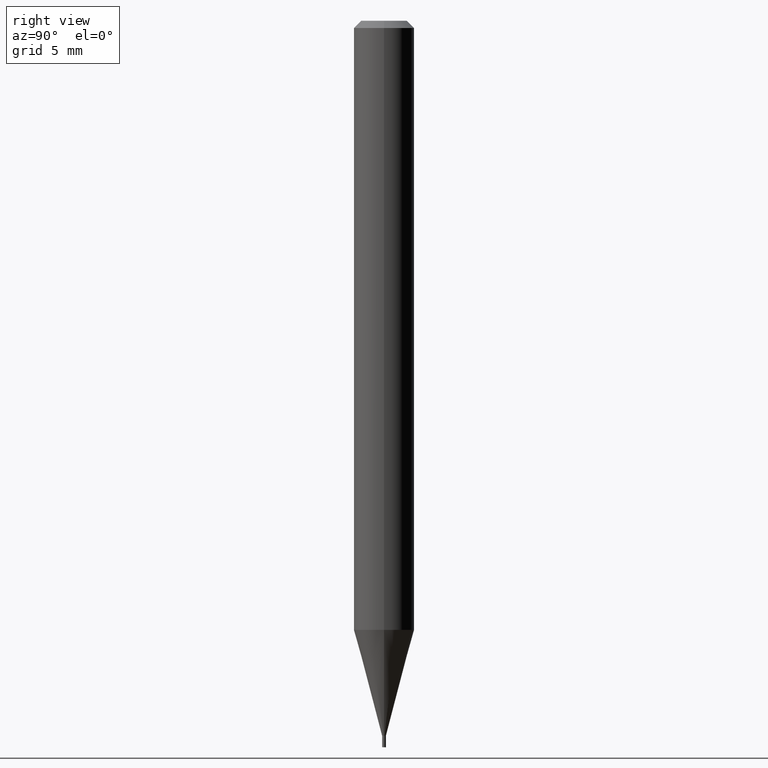
[diagram: clean part render]
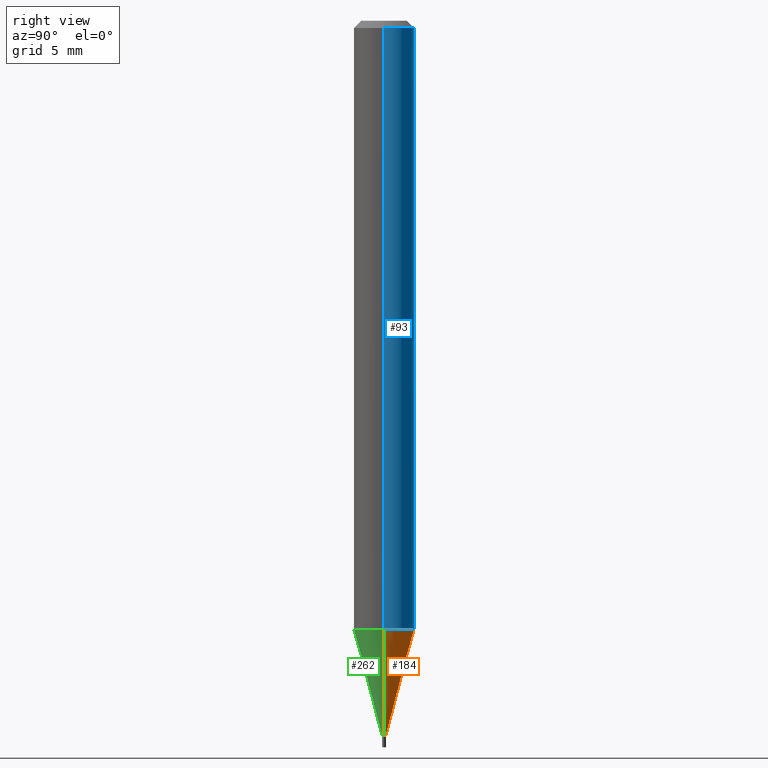
[diagram: same view with three faces highlighted in distinct colors, each labeled with its STEP entity id]
A machine part, right view with three faces highlighted in distinct colors.
Their STEP definitions:

[orange] entity #184 — the highlighted conical surface has half-angle 15 deg.
#2 = VERTEX_POINT ( 'NONE', #280 ) ;
#21 = VECTOR ( 'NONE', #464, 39.37007874015748854 ) ;
#27 = DIRECTION ( 'NONE',  ( 1.000000000000000000, -6.982962677686217801E-15, 0.000000000000000000 ) ) ;
#35 = AXIS2_PLACEMENT_3D ( 'NONE', #385, #243, #257 ) ;
#36 = CARTESIAN_POINT ( 'NONE',  ( 0.003999999999999648802, -5.181358306843225329E-15, -1.475999999999999979 ) ) ;
#41 = CARTESIAN_POINT ( 'NONE',  ( 0.003999999999999648802, -5.181358306843225329E-15, -1.475999999999999979 ) ) ;
#56 = EDGE_CURVE ( 'NONE', #208, #2, #68, .T. ) ;
#60 = CONICAL_SURFACE ( 'NONE', #121, 0.003999999999999648802, 0.2617993877991504625 ) ;
#68 = LINE ( 'NONE', #167, #179 ) ;
#71 = DIRECTION ( 'NONE',  ( 1.000000000000000000, -6.982962677686262766E-15, 0.000000000000000000 ) ) ;
#74 = DIRECTION ( 'NONE',  ( -0.2588190451025217387, 5.211531920934551042E-15, 0.9659258262890679791 ) ) ;
#78 = VERTEX_POINT ( 'NONE', #41 ) ;
#97 = LINE ( 'NONE', #36, #21 ) ;
#112 = EDGE_LOOP ( 'NONE', ( #457, #165, #447, #245 ) ) ;
#113 = EDGE_CURVE ( 'NONE', #78, #208, #125, .T. ) ;
#121 = AXIS2_PLACEMENT_3D ( 'NONE', #412, #344, #27 ) ;
#125 = CIRCLE ( 'NONE', #35, 0.003999999999999648802 ) ;
#165 = ORIENTED_EDGE ( 'NONE', *, *, #56, .T. ) ;
#167 = CARTESIAN_POINT ( 'NONE',  ( -0.003999999999999648802, -5.125004746702081184E-15, -1.475999999999999979 ) ) ;
#176 = CARTESIAN_POINT ( 'NONE',  ( -0.003999999999999648802, -4.536032213297693452E-15, -1.475999999999999979 ) ) ;
#178 = CARTESIAN_POINT ( 'NONE',  ( 0.06250000000000000000, -4.827584057098760794E-15, -1.257675027757220398 ) ) ;
#179 = VECTOR ( 'NONE', #74, 39.37007874015748854 ) ;
#184 = ADVANCED_FACE ( 'NONE', ( #307 ), #60, .T. ) ;
#188 = EDGE_CURVE ( 'NONE', #410, #2, #189, .T. ) ;
#189 = CIRCLE ( 'NONE', #411, 0.06250000000000000000 ) ;
#208 = VERTEX_POINT ( 'NONE', #176 ) ;
#242 = DIRECTION ( 'NONE',  ( -2.445468806185136597E-29, 3.491481338843145583E-15, 1.000000000000000000 ) ) ;
#243 = DIRECTION ( 'NONE',  ( -2.445468806185136597E-29, 3.491481338843145583E-15, 1.000000000000000000 ) ) ;
#245 = ORIENTED_EDGE ( 'NONE', *, *, #335, .F. ) ;
#257 = DIRECTION ( 'NONE',  ( 1.000000000000000000, -6.982962677686217801E-15, 0.000000000000000000 ) ) ;
#280 = CARTESIAN_POINT ( 'NONE',  ( -0.06250000000000000000, -3.947059679893307297E-15, -1.257675027757220398 ) ) ;
#283 = CARTESIAN_POINT ( 'NONE',  ( 3.075605048698308090E-29, -4.391148889743369914E-15, -1.257675027757220398 ) ) ;
#307 = FACE_OUTER_BOUND ( 'NONE', #112, .T. ) ;
#335 = EDGE_CURVE ( 'NONE', #78, #410, #97, .T. ) ;
#344 = DIRECTION ( 'NONE',  ( -2.445468806185136597E-29, 3.491481338843145583E-15, 1.000000000000000000 ) ) ;
#385 = CARTESIAN_POINT ( 'NONE',  ( 3.609511957929261635E-29, -5.153426456132482850E-15, -1.475999999999999979 ) ) ;
#410 = VERTEX_POINT ( 'NONE', #178 ) ;
#411 = AXIS2_PLACEMENT_3D ( 'NONE', #283, #242, #71 ) ;
#412 = CARTESIAN_POINT ( 'NONE',  ( 3.609511957929261635E-29, -5.153426456132482850E-15, -1.475999999999999979 ) ) ;
#447 = ORIENTED_EDGE ( 'NONE', *, *, #188, .F. ) ;
#457 = ORIENTED_EDGE ( 'NONE', *, *, #113, .T. ) ;
#464 = DIRECTION ( 'NONE',  ( 0.2588190451025217387, 1.565188264969619207E-15, 0.9659258262890679791 ) ) ;

[blue] entity #93 — the highlighted cylindrical surface (edge-blend (fillet) strip) has radius 1.5875 mm, axis along (-0, 0, 1).
#2 = VERTEX_POINT ( 'NONE', #280 ) ;
#20 = VECTOR ( 'NONE', #394, 39.37007874015748143 ) ;
#26 = VERTEX_POINT ( 'NONE', #209 ) ;
#71 = DIRECTION ( 'NONE',  ( 1.000000000000000000, -6.982962677686262766E-15, 0.000000000000000000 ) ) ;
#80 = CARTESIAN_POINT ( 'NONE',  ( -0.06250000000000000000, 4.440892098500626162E-16, -3.074334431409316114E-30 ) ) ;
#93 = ADVANCED_FACE ( 'NONE', ( #316 ), #256, .T. ) ;
#100 = ORIENTED_EDGE ( 'NONE', *, *, #162, .F. ) ;
#101 = CARTESIAN_POINT ( 'NONE',  ( 0.000000000000000000, 0.000000000000000000, 0.000000000000000000 ) ) ;
#119 = EDGE_CURVE ( 'NONE', #2, #26, #143, .T. ) ;
#127 = EDGE_LOOP ( 'NONE', ( #451, #322, #461, #100 ) ) ;
#143 = LINE ( 'NONE', #80, #20 ) ;
#149 = VECTOR ( 'NONE', #269, 39.37007874015748143 ) ;
#154 = LINE ( 'NONE', #191, #149 ) ;
#162 = EDGE_CURVE ( 'NONE', #410, #458, #154, .T. ) ;
#175 = DIRECTION ( 'NONE',  ( 1.000000000000000000, -6.982962677686266711E-15, 4.876176775795935793E-29 ) ) ;
#178 = CARTESIAN_POINT ( 'NONE',  ( 0.06250000000000000000, -4.827584057098760794E-15, -1.257675027757220398 ) ) ;
#185 = EDGE_CURVE ( 'NONE', #458, #26, #270, .T. ) ;
#188 = EDGE_CURVE ( 'NONE', #410, #2, #189, .T. ) ;
#189 = CIRCLE ( 'NONE', #411, 0.06250000000000000000 ) ;
#191 = CARTESIAN_POINT ( 'NONE',  ( 0.06250000000000000000, -4.364351673553916694E-16, 3.047610484872459871E-30 ) ) ;
#207 = DIRECTION ( 'NONE',  ( -2.445468806185136597E-29, 3.491481338843145583E-15, 1.000000000000000000 ) ) ;
#209 = CARTESIAN_POINT ( 'NONE',  ( -0.06250000000000000000, -1.777671345062946077E-15, -0.01499999999999999944 ) ) ;
#242 = DIRECTION ( 'NONE',  ( -2.445468806185136597E-29, 3.491481338843145583E-15, 1.000000000000000000 ) ) ;
#256 = CYLINDRICAL_SURFACE ( 'NONE', #404, 0.06250000000000000000 ) ;
#259 = CARTESIAN_POINT ( 'NONE',  ( 0.06250000000000000000, -4.888073874380388472E-16, -0.01499999999999999944 ) ) ;
#269 = DIRECTION ( 'NONE',  ( -2.445468806185136877E-29, 3.491481338843145188E-15, 1.000000000000000000 ) ) ;
#270 = CIRCLE ( 'NONE', #352, 0.06250000000000000000 ) ;
#272 = DIRECTION ( 'NONE',  ( 1.000000000000000000, -6.982962677686266711E-15, 0.000000000000000000 ) ) ;
#280 = CARTESIAN_POINT ( 'NONE',  ( -0.06250000000000000000, -3.947059679893307297E-15, -1.257675027757220398 ) ) ;
#283 = CARTESIAN_POINT ( 'NONE',  ( 3.075605048698308090E-29, -4.391148889743369914E-15, -1.257675027757220398 ) ) ;
#316 = FACE_OUTER_BOUND ( 'NONE', #127, .T. ) ;
#322 = ORIENTED_EDGE ( 'NONE', *, *, #119, .T. ) ;
#352 = AXIS2_PLACEMENT_3D ( 'NONE', #380, #207, #272 ) ;
#380 = CARTESIAN_POINT ( 'NONE',  ( 3.668203209277705088E-31, -5.237222008264718399E-17, -0.01499999999999999944 ) ) ;
#394 = DIRECTION ( 'NONE',  ( -2.445468806185136877E-29, 3.491481338843145188E-15, 1.000000000000000000 ) ) ;
#404 = AXIS2_PLACEMENT_3D ( 'NONE', #101, #466, #175 ) ;
#410 = VERTEX_POINT ( 'NONE', #178 ) ;
#411 = AXIS2_PLACEMENT_3D ( 'NONE', #283, #242, #71 ) ;
#451 = ORIENTED_EDGE ( 'NONE', *, *, #188, .T. ) ;
#458 = VERTEX_POINT ( 'NONE', #259 ) ;
#461 = ORIENTED_EDGE ( 'NONE', *, *, #185, .F. ) ;
#466 = DIRECTION ( 'NONE',  ( -2.445468806185136597E-29, 3.491481338843145583E-15, 1.000000000000000000 ) ) ;

[green] entity #262 — the highlighted conical surface has half-angle 15 deg.
#2 = VERTEX_POINT ( 'NONE', #280 ) ;
#10 = CARTESIAN_POINT ( 'NONE',  ( 3.609511957929261635E-29, -5.153426456132482850E-15, -1.475999999999999979 ) ) ;
#21 = VECTOR ( 'NONE', #464, 39.37007874015748854 ) ;
#33 = DIRECTION ( 'NONE',  ( -2.445468806185136597E-29, 3.491481338843145583E-15, 1.000000000000000000 ) ) ;
#36 = CARTESIAN_POINT ( 'NONE',  ( 0.003999999999999648802, -5.181358306843225329E-15, -1.475999999999999979 ) ) ;
#37 = AXIS2_PLACEMENT_3D ( 'NONE', #253, #391, #436 ) ;
#41 = CARTESIAN_POINT ( 'NONE',  ( 0.003999999999999648802, -5.181358306843225329E-15, -1.475999999999999979 ) ) ;
#51 = EDGE_CURVE ( 'NONE', #208, #78, #429, .T. ) ;
#56 = EDGE_CURVE ( 'NONE', #208, #2, #68, .T. ) ;
#68 = LINE ( 'NONE', #167, #179 ) ;
#74 = DIRECTION ( 'NONE',  ( -0.2588190451025217387, 5.211531920934551042E-15, 0.9659258262890679791 ) ) ;
#78 = VERTEX_POINT ( 'NONE', #41 ) ;
#92 = ORIENTED_EDGE ( 'NONE', *, *, #51, .T. ) ;
#94 = EDGE_LOOP ( 'NONE', ( #200, #92, #124, #304 ) ) ;
#97 = LINE ( 'NONE', #36, #21 ) ;
#124 = ORIENTED_EDGE ( 'NONE', *, *, #335, .T. ) ;
#167 = CARTESIAN_POINT ( 'NONE',  ( -0.003999999999999648802, -5.125004746702081184E-15, -1.475999999999999979 ) ) ;
#176 = CARTESIAN_POINT ( 'NONE',  ( -0.003999999999999648802, -4.536032213297693452E-15, -1.475999999999999979 ) ) ;
#178 = CARTESIAN_POINT ( 'NONE',  ( 0.06250000000000000000, -4.827584057098760794E-15, -1.257675027757220398 ) ) ;
#179 = VECTOR ( 'NONE', #74, 39.37007874015748854 ) ;
#200 = ORIENTED_EDGE ( 'NONE', *, *, #56, .F. ) ;
#201 = FACE_OUTER_BOUND ( 'NONE', #94, .T. ) ;
#202 = DIRECTION ( 'NONE',  ( 1.000000000000000000, -6.982962677686217801E-15, 0.000000000000000000 ) ) ;
#208 = VERTEX_POINT ( 'NONE', #176 ) ;
#213 = AXIS2_PLACEMENT_3D ( 'NONE', #250, #361, #348 ) ;
#250 = CARTESIAN_POINT ( 'NONE',  ( 3.609511957929261635E-29, -5.153426456132482850E-15, -1.475999999999999979 ) ) ;
#253 = CARTESIAN_POINT ( 'NONE',  ( 3.075605048698308090E-29, -4.391148889743369914E-15, -1.257675027757220398 ) ) ;
#262 = ADVANCED_FACE ( 'NONE', ( #201 ), #370, .T. ) ;
#280 = CARTESIAN_POINT ( 'NONE',  ( -0.06250000000000000000, -3.947059679893307297E-15, -1.257675027757220398 ) ) ;
#300 = AXIS2_PLACEMENT_3D ( 'NONE', #10, #33, #202 ) ;
#302 = CIRCLE ( 'NONE', #37, 0.06250000000000000000 ) ;
#304 = ORIENTED_EDGE ( 'NONE', *, *, #433, .F. ) ;
#335 = EDGE_CURVE ( 'NONE', #78, #410, #97, .T. ) ;
#348 = DIRECTION ( 'NONE',  ( 1.000000000000000000, -6.982962677686217801E-15, 0.000000000000000000 ) ) ;
#361 = DIRECTION ( 'NONE',  ( -2.445468806185136597E-29, 3.491481338843145583E-15, 1.000000000000000000 ) ) ;
#370 = CONICAL_SURFACE ( 'NONE', #213, 0.003999999999999648802, 0.2617993877991504625 ) ;
#391 = DIRECTION ( 'NONE',  ( -2.445468806185136597E-29, 3.491481338843145583E-15, 1.000000000000000000 ) ) ;
#410 = VERTEX_POINT ( 'NONE', #178 ) ;
#429 = CIRCLE ( 'NONE', #300, 0.003999999999999648802 ) ;
#433 = EDGE_CURVE ( 'NONE', #2, #410, #302, .T. ) ;
#436 = DIRECTION ( 'NONE',  ( 1.000000000000000000, -6.982962677686262766E-15, 0.000000000000000000 ) ) ;
#464 = DIRECTION ( 'NONE',  ( 0.2588190451025217387, 1.565188264969619207E-15, 0.9659258262890679791 ) ) ;